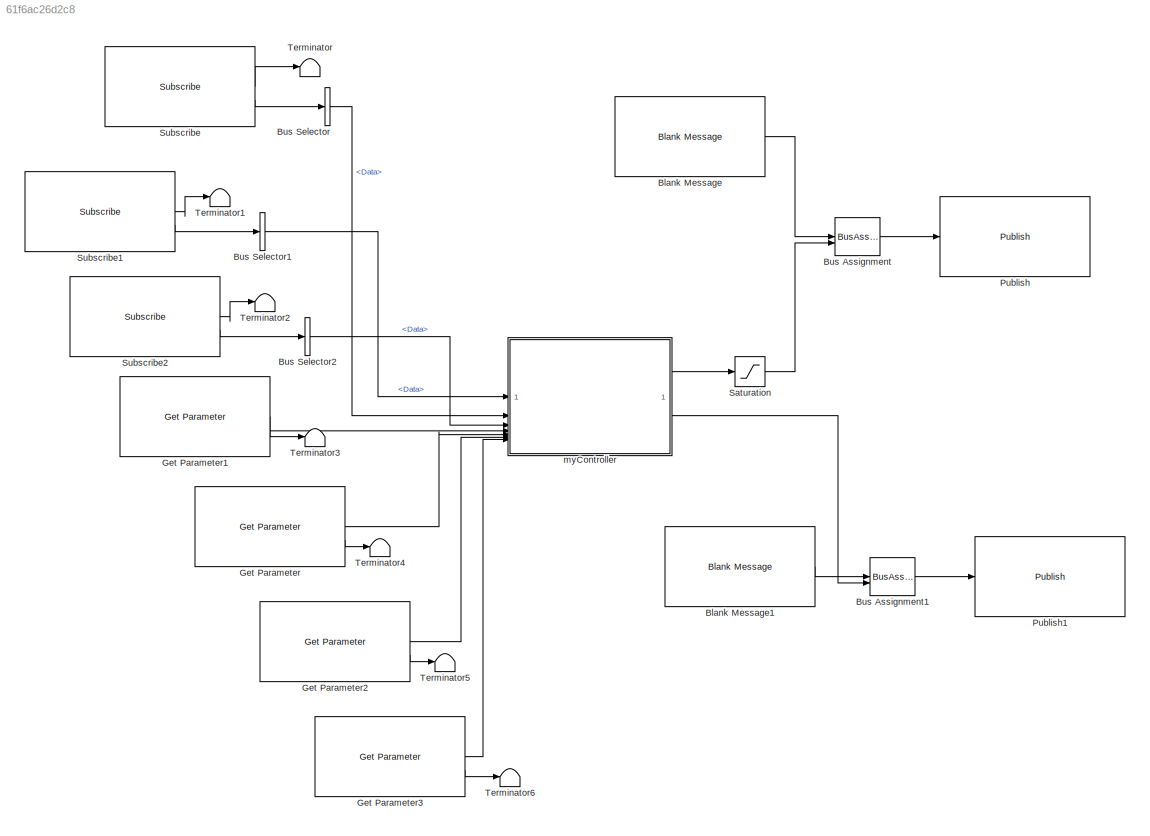
MODEL slx_61f6ac26d2c8
KIND model
CONFIG AbsTol = auto
CONFIG EnableMultiTasking = off
CONFIG FixedStep = 0.05
CONFIG MaxStep = auto
CONFIG MinStep = auto
CONFIG RelTol = 1e-3
CONFIG SampleTimeConstraint = Unconstrained
CONFIG SolverName = FixedStepAuto
CONFIG StartTime = 0.0
CONFIG StopTime = inf
BLOCK [Reference] Blank Message  REF=robotlib/Blank Message
  SourceBlock = robotlib/Blank Message
  SourceType = ROS Blank Message
BLOCK [Reference] Blank Message1  REF=robotlib/Blank Message
  SourceBlock = robotlib/Blank Message
  SourceType = ROS Blank Message
BLOCK [BusAssignment] Bus Assignment
  AssignedSignals = Data
BLOCK [BusAssignment] Bus Assignment1
  AssignedSignals = Data
BLOCK [BusSelector] Bus Selector
  OutputSignals = Data
BLOCK [BusSelector] Bus Selector1
  OutputSignals = Data
BLOCK [BusSelector] Bus Selector2
  OutputSignals = Data
BLOCK [Reference] Get Parameter  REF=robotlib/Get Parameter
  SourceBlock = robotlib/Get Parameter
  SourceType = ROS Get Parameter
BLOCK [Reference] Get Parameter1  REF=robotlib/Get Parameter
  SourceBlock = robotlib/Get Parameter
  SourceType = ROS Get Parameter
BLOCK [Reference] Get Parameter2  REF=robotlib/Get Parameter
  SourceBlock = robotlib/Get Parameter
  SourceType = ROS Get Parameter
BLOCK [Reference] Get Parameter3  REF=robotlib/Get Parameter
  SourceBlock = robotlib/Get Parameter
  SourceType = ROS Get Parameter
BLOCK [Reference] Publish  REF=robotlib/Publish
  SourceBlock = robotlib/Publish
  SourceType = ROS Publish
BLOCK [Reference] Publish1  REF=robotlib/Publish
  SourceBlock = robotlib/Publish
  SourceType = ROS Publish
BLOCK [Saturate] Saturation
  LowerLimit = -3.0
  UpperLimit = 1.5
BLOCK [Reference] Subscribe  REF=robotlib/Subscribe
  SourceBlock = robotlib/Subscribe
  SourceType = ROS Subscribe
BLOCK [Reference] Subscribe1  REF=robotlib/Subscribe
  SourceBlock = robotlib/Subscribe
  SourceType = ROS Subscribe
BLOCK [Reference] Subscribe2  REF=robotlib/Subscribe
  SourceBlock = robotlib/Subscribe
  SourceType = ROS Subscribe
BLOCK [Terminator] Terminator
BLOCK [Terminator] Terminator1
BLOCK [Terminator] Terminator2
BLOCK [Terminator] Terminator3
BLOCK [Terminator] Terminator4
BLOCK [Terminator] Terminator5
BLOCK [Terminator] Terminator6
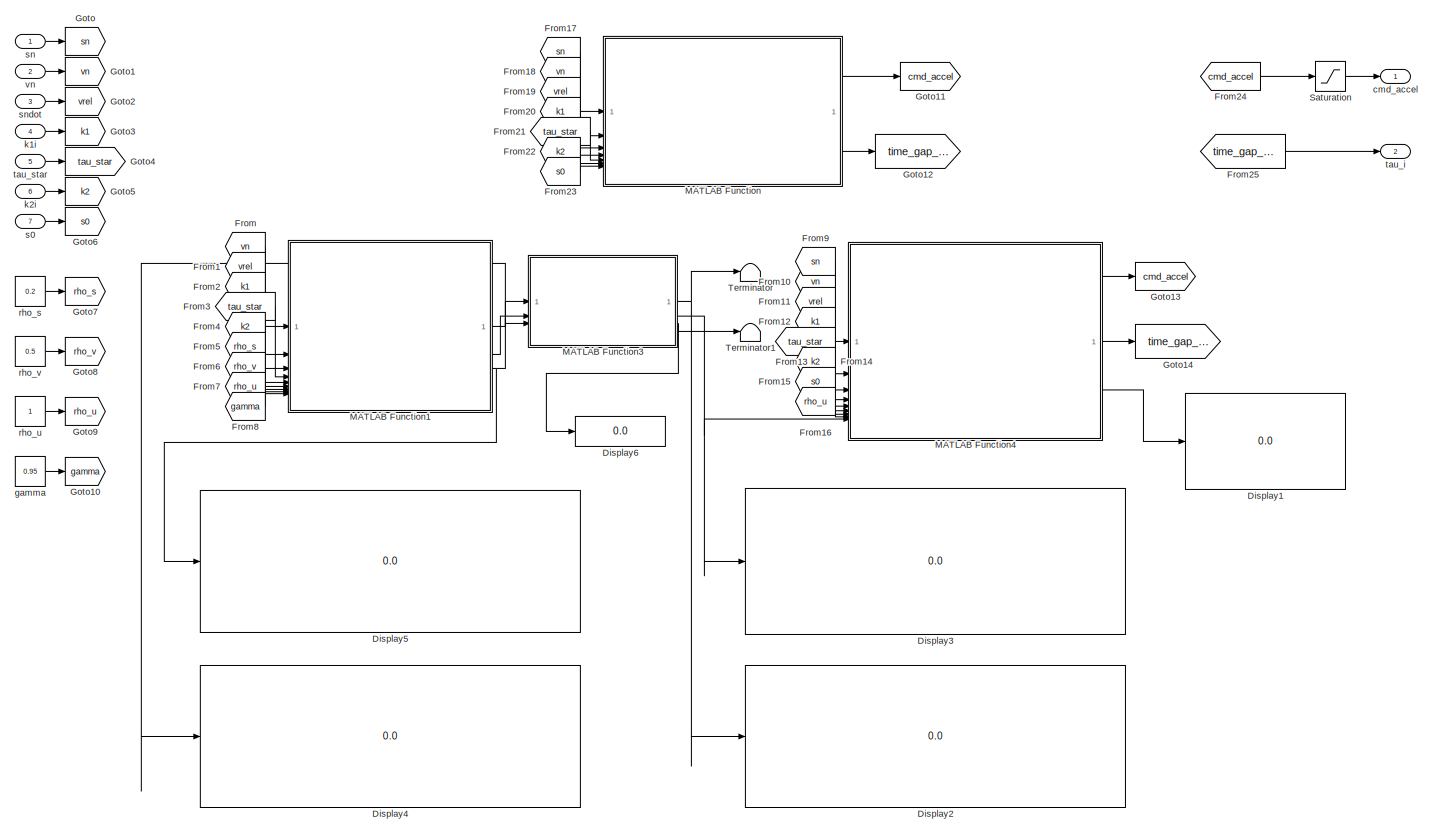
[diagram: myController - part 1/1, most of the canvas]
BLOCK [SubSystem] myController
BLOCK [Display] myController/Display1
  Decimation = 1
BLOCK [Display] myController/Display2
  Decimation = 1
BLOCK [Display] myController/Display3
  Decimation = 1
BLOCK [Display] myController/Display4
  Decimation = 1
BLOCK [Display] myController/Display5
  Decimation = 1
BLOCK [Display] myController/Display6
  Decimation = 1
BLOCK [From] myController/From
  GotoTag = vn
BLOCK [From] myController/From1
  GotoTag = vrel
BLOCK [From] myController/From10
  GotoTag = vn
BLOCK [From] myController/From11
  GotoTag = vrel
BLOCK [From] myController/From12
  GotoTag = k1
BLOCK [From] myController/From13
  GotoTag = tau_star
BLOCK [From] myController/From14
  GotoTag = k2
BLOCK [From] myController/From15
  GotoTag = s0
BLOCK [From] myController/From16
  GotoTag = rho_u
BLOCK [From] myController/From17
  Commented = on
  GotoTag = sn
BLOCK [From] myController/From18
  Commented = on
  GotoTag = vn
BLOCK [From] myController/From19
  Commented = on
  GotoTag = vrel
BLOCK [From] myController/From2
  GotoTag = k1
BLOCK [From] myController/From20
  Commented = on
  GotoTag = k1
BLOCK [From] myController/From21
  Commented = on
  GotoTag = tau_star
BLOCK [From] myController/From22
  Commented = on
  GotoTag = k2
BLOCK [From] myController/From23
  Commented = on
  GotoTag = s0
BLOCK [From] myController/From24
  GotoTag = cmd_accel
BLOCK [From] myController/From25
  GotoTag = time_gap_comm
BLOCK [From] myController/From3
  GotoTag = tau_star
BLOCK [From] myController/From4
  GotoTag = k2
BLOCK [From] myController/From5
  GotoTag = rho_s
BLOCK [From] myController/From6
  GotoTag = rho_v
BLOCK [From] myController/From7
  GotoTag = rho_u
BLOCK [From] myController/From8
  GotoTag = gamma
BLOCK [From] myController/From9
  GotoTag = sn
BLOCK [Goto] myController/Goto
  GotoTag = sn
BLOCK [Goto] myController/Goto1
  GotoTag = vn
BLOCK [Goto] myController/Goto10
  GotoTag = gamma
BLOCK [Goto] myController/Goto11
  Commented = on
  GotoTag = cmd_accel
BLOCK [Goto] myController/Goto12
  Commented = on
  GotoTag = time_gap_comm
BLOCK [Goto] myController/Goto13
  GotoTag = cmd_accel
BLOCK [Goto] myController/Goto14
  GotoTag = time_gap_comm
BLOCK [Goto] myController/Goto2
  GotoTag = vrel
BLOCK [Goto] myController/Goto3
  GotoTag = k1
BLOCK [Goto] myController/Goto4
  GotoTag = tau_star
BLOCK [Goto] myController/Goto5
  GotoTag = k2
BLOCK [Goto] myController/Goto6
  GotoTag = s0
BLOCK [Goto] myController/Goto7
  GotoTag = rho_s
BLOCK [Goto] myController/Goto8
  GotoTag = rho_v
BLOCK [Goto] myController/Goto9
  GotoTag = rho_u
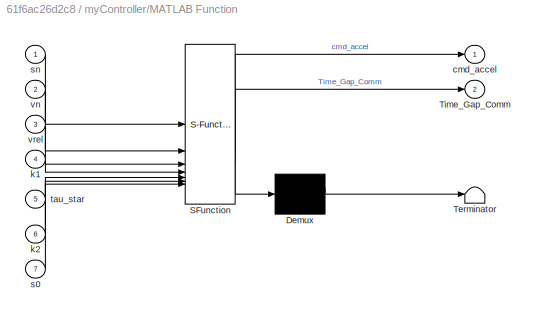
BLOCK [SubSystem] myController/MATLAB Function
  Commented = on
  ErrorFcn = Stateflow.Translate.translate
  LibrarySourceBlock = simulink/User-Defined\nFunctions/MATLAB Function
  PermitHierarchicalResolution = ExplicitOnly
  SFBlockType = MATLAB Function
  TreatAsAtomicUnit = on
BLOCK [Demux] myController/MATLAB Function/ Demux 
  Outputs = 1
BLOCK [S-Function] myController/MATLAB Function/ SFunction 
  EnableBusSupport = off
  FunctionName = sf_sfun
  PortCounts = [7 3]
  SFcnIsStateOwnerBlock = off
  SFunctionDeploymentMode = off
  Tag = Stateflow S-Function 2
BLOCK [Terminator] myController/MATLAB Function/ Terminator 
BLOCK [Outport] myController/MATLAB Function/Time_Gap_Comm
  Port = 2
BLOCK [Outport] myController/MATLAB Function/cmd_accel
BLOCK [Inport] myController/MATLAB Function/k1
  Port = 4
BLOCK [Inport] myController/MATLAB Function/k2
  Port = 6
BLOCK [Inport] myController/MATLAB Function/s0
  Port = 7
BLOCK [Inport] myController/MATLAB Function/sn
BLOCK [Inport] myController/MATLAB Function/tau_star
  Port = 5
BLOCK [Inport] myController/MATLAB Function/vn
  Port = 2
BLOCK [Inport] myController/MATLAB Function/vrel
  Port = 3
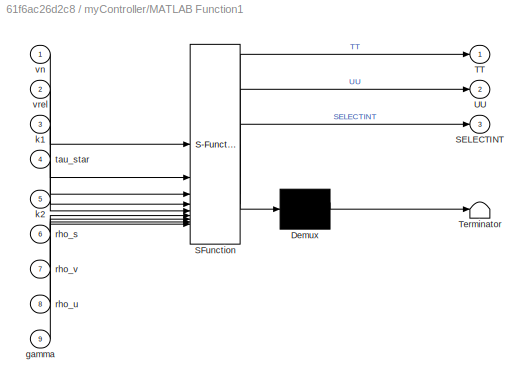
BLOCK [SubSystem] myController/MATLAB Function1
  ErrorFcn = Stateflow.Translate.translate
  LibrarySourceBlock = simulink/User-Defined\nFunctions/MATLAB Function
  PermitHierarchicalResolution = ExplicitOnly
  SFBlockType = MATLAB Function
  TreatAsAtomicUnit = on
BLOCK [Demux] myController/MATLAB Function1/ Demux 
  Outputs = 1
BLOCK [S-Function] myController/MATLAB Function1/ SFunction 
  EnableBusSupport = off
  FunctionName = sf_sfun
  PortCounts = [9 4]
  SFcnIsStateOwnerBlock = off
  SFunctionDeploymentMode = off
  Tag = Stateflow S-Function 3
BLOCK [Terminator] myController/MATLAB Function1/ Terminator 
BLOCK [Outport] myController/MATLAB Function1/SELECTINT
  Port = 3
BLOCK [Outport] myController/MATLAB Function1/TT
BLOCK [Outport] myController/MATLAB Function1/UU
  Port = 2
BLOCK [Inport] myController/MATLAB Function1/gamma
  Port = 9
BLOCK [Inport] myController/MATLAB Function1/k1
  Port = 3
BLOCK [Inport] myController/MATLAB Function1/k2
  Port = 5
BLOCK [Inport] myController/MATLAB Function1/rho_s
  Port = 6
BLOCK [Inport] myController/MATLAB Function1/rho_u
  Port = 8
BLOCK [Inport] myController/MATLAB Function1/rho_v
  Port = 7
BLOCK [Inport] myController/MATLAB Function1/tau_star
  Port = 4
BLOCK [Inport] myController/MATLAB Function1/vn
BLOCK [Inport] myController/MATLAB Function1/vrel
  Port = 2
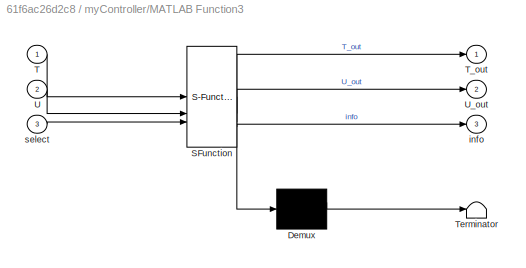
BLOCK [SubSystem] myController/MATLAB Function3
  ErrorFcn = Stateflow.Translate.translate
  PermitHierarchicalResolution = ExplicitOnly
  SFBlockType = MATLAB Function
  TreatAsAtomicUnit = on
BLOCK [Demux] myController/MATLAB Function3/ Demux 
  Outputs = 1
BLOCK [S-Function] myController/MATLAB Function3/ SFunction 
  EnableBusSupport = off
  FunctionName = sf_sfun
  PortCounts = [3 4]
  SFcnIsStateOwnerBlock = off
  SFunctionDeploymentMode = off
  Tag = Stateflow S-Function 4
BLOCK [Terminator] myController/MATLAB Function3/ Terminator 
BLOCK [Inport] myController/MATLAB Function3/T
BLOCK [Outport] myController/MATLAB Function3/T_out
BLOCK [Inport] myController/MATLAB Function3/U
  Port = 2
BLOCK [Outport] myController/MATLAB Function3/U_out
  Port = 2
BLOCK [Outport] myController/MATLAB Function3/info
  Port = 3
BLOCK [Inport] myController/MATLAB Function3/select
  Port = 3
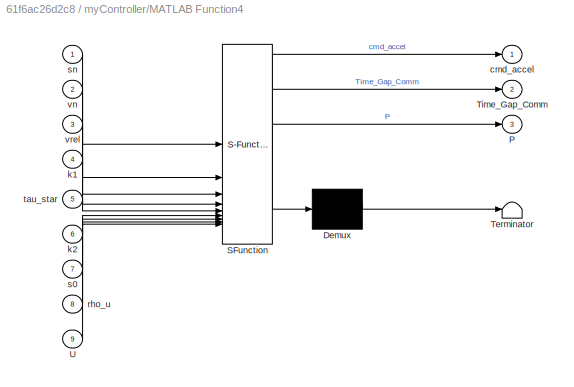
BLOCK [SubSystem] myController/MATLAB Function4
  ErrorFcn = Stateflow.Translate.translate
  LibrarySourceBlock = simulink/User-Defined\nFunctions/MATLAB Function
  PermitHierarchicalResolution = ExplicitOnly
  SFBlockType = MATLAB Function
  TreatAsAtomicUnit = on
BLOCK [Demux] myController/MATLAB Function4/ Demux 
  Outputs = 1
BLOCK [S-Function] myController/MATLAB Function4/ SFunction 
  EnableBusSupport = off
  FunctionName = sf_sfun
  PortCounts = [9 4]
  SFcnIsStateOwnerBlock = off
  SFunctionDeploymentMode = off
  Tag = Stateflow S-Function 5
BLOCK [Terminator] myController/MATLAB Function4/ Terminator 
BLOCK [Outport] myController/MATLAB Function4/P
  Port = 3
BLOCK [Outport] myController/MATLAB Function4/Time_Gap_Comm
  Port = 2
BLOCK [Inport] myController/MATLAB Function4/U
  Port = 9
BLOCK [Outport] myController/MATLAB Function4/cmd_accel
BLOCK [Inport] myController/MATLAB Function4/k1
  Port = 4
BLOCK [Inport] myController/MATLAB Function4/k2
  Port = 6
BLOCK [Inport] myController/MATLAB Function4/rho_u
  Port = 8
BLOCK [Inport] myController/MATLAB Function4/s0
  Port = 7
BLOCK [Inport] myController/MATLAB Function4/sn
BLOCK [Inport] myController/MATLAB Function4/tau_star
  Port = 5
BLOCK [Inport] myController/MATLAB Function4/vn
  Port = 2
BLOCK [Inport] myController/MATLAB Function4/vrel
  Port = 3
BLOCK [Saturate] myController/Saturation
  LowerLimit = -3
  UpperLimit = 1.5
BLOCK [Terminator] myController/Terminator
BLOCK [Terminator] myController/Terminator1
BLOCK [Outport] myController/cmd_accel
BLOCK [Constant] myController/gamma
  Value = 0.95
BLOCK [Inport] myController/k1i
  Port = 4
BLOCK [Inport] myController/k2i
  Port = 6
BLOCK [Constant] myController/rho_s
  Value = 0.2
BLOCK [Constant] myController/rho_u
BLOCK [Constant] myController/rho_v
  Value = 0.5
BLOCK [Inport] myController/s0
  Port = 7
BLOCK [Inport] myController/sn
BLOCK [Inport] myController/sndot
  Port = 3
BLOCK [Outport] myController/tau_i
  Port = 2
BLOCK [Inport] myController/tau_star
  Port = 5
BLOCK [Inport] myController/vn
  Port = 2
LINE Blank Message1:1 -> Bus Assignment1:1
LINE Blank Message:1 -> Bus Assignment:1
LINE Bus Assignment1:1 -> Publish1:1
LINE Bus Assignment:1 -> Publish:1
LINE Bus Selector1:1 -> myController:1
LINE Bus Selector2:1 -> myController:3
LINE Bus Selector:1 -> myController:2
LINE Get Parameter1:1 -> myController:4
LINE Get Parameter1:2 -> Terminator3:1
LINE Get Parameter2:1 -> myController:6
LINE Get Parameter2:2 -> Terminator5:1
LINE Get Parameter3:1 -> myController:7
LINE Get Parameter3:2 -> Terminator6:1
LINE Get Parameter:1 -> myController:5
LINE Get Parameter:2 -> Terminator4:1
LINE Saturation:1 -> Bus Assignment:2
LINE Subscribe1:1 -> Terminator1:1
LINE Subscribe1:2 -> Bus Selector1:1
LINE Subscribe2:1 -> Terminator2:1
LINE Subscribe2:2 -> Bus Selector2:1
LINE Subscribe:1 -> Terminator:1
LINE Subscribe:2 -> Bus Selector:1
LINE myController/From10:1 -> myController/MATLAB Function4:2
LINE myController/From11:1 -> myController/MATLAB Function4:3
LINE myController/From12:1 -> myController/MATLAB Function4:4
LINE myController/From13:1 -> myController/MATLAB Function4:5
LINE myController/From14:1 -> myController/MATLAB Function4:6
LINE myController/From15:1 -> myController/MATLAB Function4:7
LINE myController/From16:1 -> myController/MATLAB Function4:8
LINE myController/From17:1 -> myController/MATLAB Function:1
LINE myController/From18:1 -> myController/MATLAB Function:2
LINE myController/From19:1 -> myController/MATLAB Function:3
LINE myController/From1:1 -> myController/MATLAB Function1:2
LINE myController/From20:1 -> myController/MATLAB Function:4
LINE myController/From21:1 -> myController/MATLAB Function:5
LINE myController/From22:1 -> myController/MATLAB Function:6
LINE myController/From23:1 -> myController/MATLAB Function:7
LINE myController/From24:1 -> myController/Saturation:1
LINE myController/From25:1 -> myController/tau_i:1
LINE myController/From2:1 -> myController/MATLAB Function1:3
LINE myController/From3:1 -> myController/MATLAB Function1:4
LINE myController/From4:1 -> myController/MATLAB Function1:5
LINE myController/From5:1 -> myController/MATLAB Function1:6
LINE myController/From6:1 -> myController/MATLAB Function1:7
LINE myController/From7:1 -> myController/MATLAB Function1:8
LINE myController/From8:1 -> myController/MATLAB Function1:9
LINE myController/From9:1 -> myController/MATLAB Function4:1
LINE myController/From:1 -> myController/MATLAB Function1:1
NET myController/MATLAB Function1:1 -> myController/Display4:1, myController/MATLAB Function3:1
LINE myController/MATLAB Function1:2 -> myController/MATLAB Function3:2
NET myController/MATLAB Function1:3 -> myController/Display5:1, myController/MATLAB Function3:3
NET myController/MATLAB Function3:1 -> myController/Display2:1, myController/Terminator:1
NET myController/MATLAB Function3:2 -> myController/Display3:1, myController/MATLAB Function4:9
NET myController/MATLAB Function3:3 -> myController/Display6:1, myController/Terminator1:1
LINE myController/MATLAB Function4:1 -> myController/Goto13:1
LINE myController/MATLAB Function4:2 -> myController/Goto14:1
LINE myController/MATLAB Function4:3 -> myController/Display1:1
LINE myController/MATLAB Function:1 -> myController/Goto11:1
LINE myController/MATLAB Function:2 -> myController/Goto12:1
LINE myController/Saturation:1 -> myController/cmd_accel:1
LINE myController/gamma:1 -> myController/Goto10:1
LINE myController/k1i:1 -> myController/Goto3:1
LINE myController/k2i:1 -> myController/Goto5:1
LINE myController/rho_s:1 -> myController/Goto7:1
LINE myController/rho_u:1 -> myController/Goto9:1
LINE myController/rho_v:1 -> myController/Goto8:1
LINE myController/s0:1 -> myController/Goto6:1
LINE myController/sn:1 -> myController/Goto:1
LINE myController/sndot:1 -> myController/Goto2:1
LINE myController/tau_star:1 -> myController/Goto4:1
LINE myController/vn:1 -> myController/Goto1:1
LINE myController:1 -> Saturation:1
LINE myController:2 -> Bus Assignment1:2
note: NET lines group one-source signal fan-out (src -> all destinations, sorted); 1:1 wires keep LINE
CHART myController/MATLAB Function states=1 transitions=1
  STATE_LABEL 'eML_blk_kernel()'
  STATE_LABEL "SCRIPT:\nfunction [cmd_accel, Time_Gap_Comm] = vtg_acc_fcn(sn, vn, vrel, k1, tau_star, k2, s0)\n\ncoder.extrinsic('icare'); \n\nrho_s = 0.2;\nrho_v = 0.5;\nrho_u = 1.0;\ngamma = 0.95;\nAsys = [0 -1; k1 (-k1*tau_star-k2)];\nBdist = [1; k2];\nCsys = [rho_s 0; 0 rho_v; 0 0];\nRu = rho_u^2;\nRmat = [-1/gamma^2 0; 0 inv(Ru)];\n\nve = vrel + vn;\ns_err = sn - (s0+tau_star*ve);\nv_err = vn - ve;\nBctrl = [0; -k1*ve];\nP=ze...<+293ch>"
CHART myController/MATLAB Function1 states=1 transitions=1
  STATE_LABEL 'eML_blk_kernel()'
  STATE_LABEL "SCRIPT:\nfunction [TT, UU, SELECTINT] = vtg_acc_fcn1(vn, vrel, k1, tau_star, k2, rho_s, rho_v, rho_u, gamma)\nAsys = [0 -1; k1 (-k1*tau_star-k2)];\nBdist = [1; k2];\nCsys = [rho_s 0; 0 rho_v; 0 0];\nRu = rho_u^2;\nRmat = [-1/gamma^2 0; 0 inv(Ru)];\n\nve = vrel + vn;\nBctrl = [0; -k1*ve];\n\nBsys = [Bdist, Bctrl];\nQmat = Csys'*Csys;\n\n% --- Replacement for icare(A, B, Q, R) -----------------------------------\n...<+615ch>"
CHART myController/MATLAB Function3 states=1 transitions=1
  STATE_LABEL 'eML_blk_kernel()'
  STATE_LABEL 'SCRIPT:\nfunction [T_out, U_out, info] = call_ordschur(T, U, select)\n%#codegen\ncoder.cinclude(\'ordschur_wrapper.h\');\n\nn = size(T,1);\n\nT_out = T;\nU_out = U;\n\ninfo = int32(0);\n\ninfo = coder.ceval(\'ordschur_reorder\', ...\n    int32(n), ...\n    coder.ref(T_out), ...\n    coder.ref(U_out), ...\n    coder.rref(select) );\n\n% For Simulink\n% customDir = "<userpath><path><+259ch>'
CHART myController/MATLAB Function4 states=1 transitions=1
  STATE_LABEL 'eML_blk_kernel()'
  STATE_LABEL 'SCRIPT:\nfunction [cmd_accel, Time_Gap_Comm, P] = vtg_acc_fcn2(sn, vn, vrel, k1, tau_star, k2, s0, rho_u, U)\ncmd_accel = 0; Time_Gap_Comm= 0;\nRu = rho_u^2;\n\nve = vrel + vn;\ns_err = sn - (s0+tau_star*ve);\nv_err = vn - ve;\n\n% --- Replacement for icare(A, B, Q, R) -----------------------------------\nP = zeros(2, 2);\n[m,n] = size(U);\nU11 = U(1:(m/2), 1:(n/2));\nU21 = U((m/2+1):m, 1:(n/2));\nP = U21/U11;\n...<+223ch>'
CHART  states=0 transitions=0
CHART  states=0 transitions=0
CHART  states=0 transitions=0
CHART  states=0 transitions=0
note: 1 file-system path scrubbed to <path> (not preserved elsewhere — flat text is the only slx artifact)
